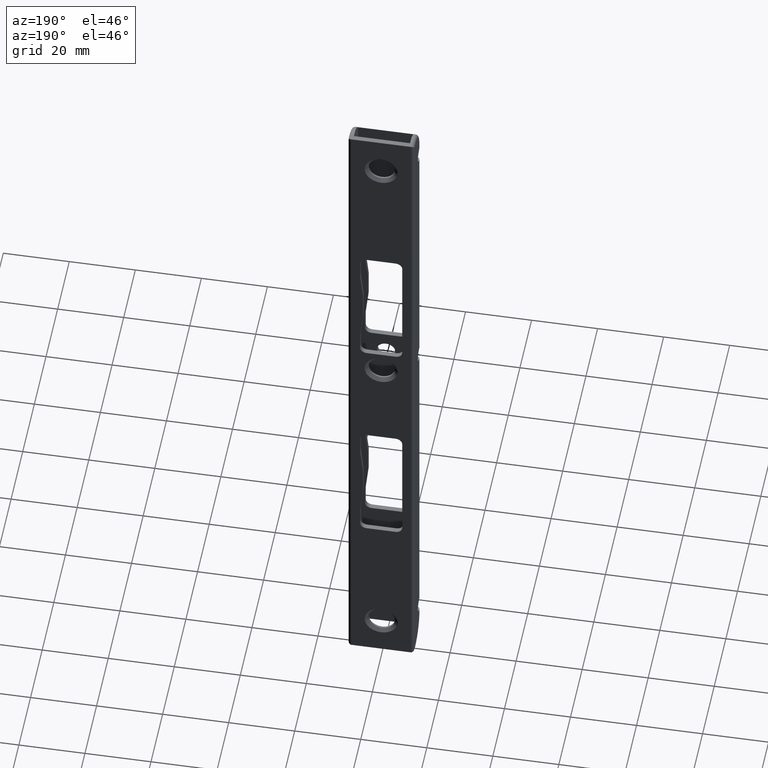
[diagram: clean part render]
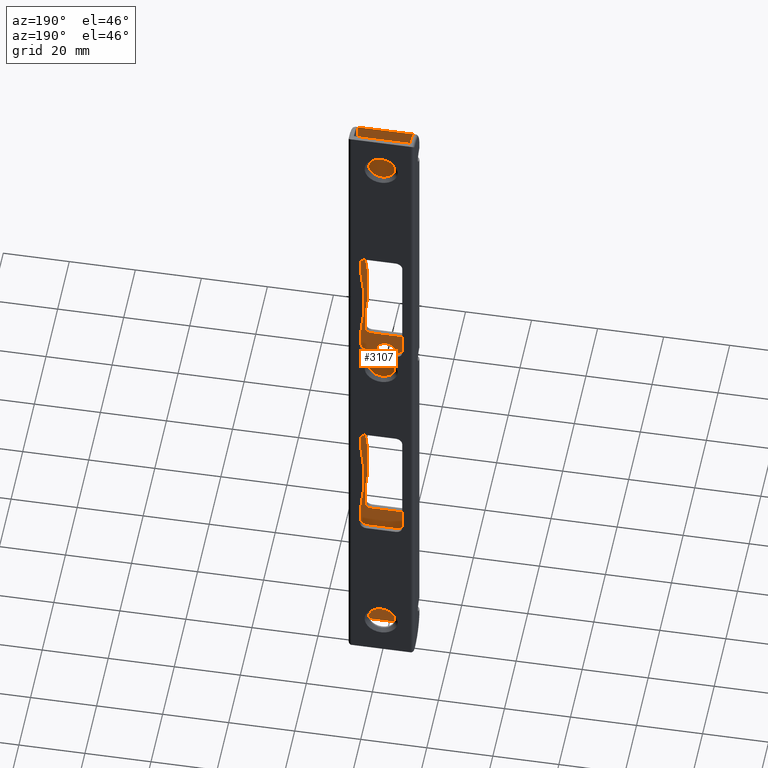
[diagram: same view with one face highlighted and labeled with its STEP entity id]
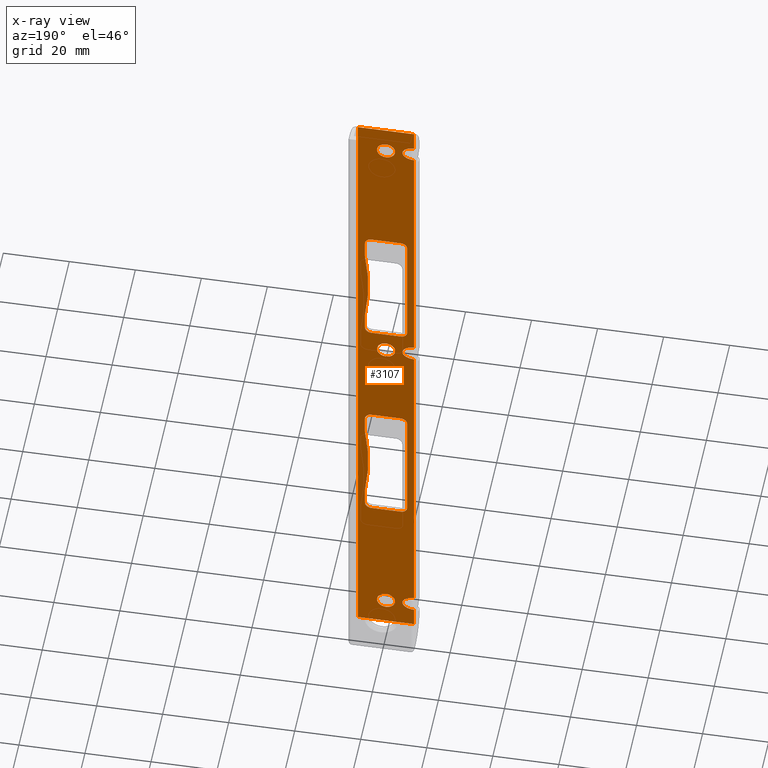
[diagram: x-ray of the same camera — body ghosted, the highlighted face saturated]
A machine part, auxiliary view. The second image highlights one B-rep face of the part: STEP entity #3107.
The next image is the same camera in x-ray: the body ghosted, the highlighted face saturated — about 0% of this face is hidden behind the body in this view.
In plain terms, the highlighted planar face has unit normal (-0, 1, 0).
Its self-contained STEP definition (entity closure, byte-faithful):
#17 = VECTOR ( 'NONE', #677, 1000.000000000000000 ) ;
#20 = CIRCLE ( 'NONE', #425, 2.000000000000001776 ) ;
#22 = DIRECTION ( 'NONE',  ( -1.328655806570404533E-30, 1.000000000000000000, 0.000000000000000000 ) ) ;
#31 = VERTEX_POINT ( 'NONE', #2887 ) ;
#36 =( BOUNDED_CURVE ( )  B_SPLINE_CURVE ( 3, ( #1182, #695, #2162, #610 ),
 .UNSPECIFIED., .F., .T. ) 
 B_SPLINE_CURVE_WITH_KNOTS ( ( 4, 4 ),
 ( 1.570796326794892117, 3.141592653589793116 ),
 .UNSPECIFIED. ) 
 CURVE ( )  GEOMETRIC_REPRESENTATION_ITEM ( )  RATIONAL_B_SPLINE_CURVE ( ( 1.000000000000000000, 0.8047378541243640493, 0.8047378541243640493, 1.000000000000000000 ) ) 
 REPRESENTATION_ITEM ( '' )  );
#37 = ORIENTED_EDGE ( 'NONE', *, *, #2054, .F. ) ;
#56 = DIRECTION ( 'NONE',  ( -1.328655806570404533E-30, 1.000000000000000000, 0.000000000000000000 ) ) ;
#91 = VERTEX_POINT ( 'NONE', #2718 ) ;
#94 = ORIENTED_EDGE ( 'NONE', *, *, #1944, .T. ) ;
#119 = VECTOR ( 'NONE', #201, 1000.000000000000000 ) ;
#125 = ORIENTED_EDGE ( 'NONE', *, *, #2220, .F. ) ;
#146 = DIRECTION ( 'NONE',  ( 0.000000000000000000, 0.000000000000000000, 1.000000000000000000 ) ) ;
#151 =( BOUNDED_CURVE ( )  B_SPLINE_CURVE ( 3, ( #732, #967, #945, #1952 ),
 .UNSPECIFIED., .F., .T. ) 
 B_SPLINE_CURVE_WITH_KNOTS ( ( 4, 4 ),
 ( 1.570796326794892117, 3.141592653589793116 ),
 .UNSPECIFIED. ) 
 CURVE ( )  GEOMETRIC_REPRESENTATION_ITEM ( )  RATIONAL_B_SPLINE_CURVE ( ( 1.000000000000000000, 0.8047378541243640493, 0.8047378541243640493, 1.000000000000000000 ) ) 
 REPRESENTATION_ITEM ( '' )  );
#156 = ORIENTED_EDGE ( 'NONE', *, *, #2753, .F. ) ;
#171 = LINE ( 'NONE', #2719, #119 ) ;
#187 = VERTEX_POINT ( 'NONE', #1523 ) ;
#201 = DIRECTION ( 'NONE',  ( 1.000000000000000000, -1.328655806570404533E-30, 0.000000000000000000 ) ) ;
#211 = FACE_OUTER_BOUND ( 'NONE', #2720, .T. ) ;
#220 = ORIENTED_EDGE ( 'NONE', *, *, #2531, .F. ) ;
#222 = CARTESIAN_POINT ( 'NONE',  ( -4.964466094067229385, -3.499999999999998668, 12.46446609406727646 ) ) ;
#226 = CIRCLE ( 'NONE', #1277, 2.000000000000001776 ) ;
#229 = CARTESIAN_POINT ( 'NONE',  ( -8.500000000000000000, -3.499999999999999556, -17.59999999999999076 ) ) ;
#234 = AXIS2_PLACEMENT_3D ( 'NONE', #491, #1493, #434 ) ;
#236 = ORIENTED_EDGE ( 'NONE', *, *, #1478, .F. ) ;
#247 = CARTESIAN_POINT ( 'NONE',  ( 1.387778780781445676E-14, -3.499999999999999556, 13.75000000000000888 ) ) ;
#251 = DIRECTION ( 'NONE',  ( 0.000000000000000000, 0.000000000000000000, 1.000000000000000000 ) ) ;
#260 = DIRECTION ( 'NONE',  ( 0.000000000000000000, 0.000000000000000000, 1.000000000000000000 ) ) ;
#264 = DIRECTION ( 'NONE',  ( 0.000000000000000000, 0.000000000000000000, 1.000000000000000000 ) ) ;
#268 = CIRCLE ( 'NONE', #588, 80.00000000000000000 ) ;
#269 = CARTESIAN_POINT ( 'NONE',  ( -8.500000000000000000, -3.499999999999999556, 108.5000000000000000 ) ) ;
#292 = LINE ( 'NONE', #1805, #2611 ) ;
#297 = LINE ( 'NONE', #1289, #1782 ) ;
#298 = DIRECTION ( 'NONE',  ( 0.000000000000000000, 0.000000000000000000, -1.000000000000000000 ) ) ;
#299 = DIRECTION ( 'NONE',  ( -1.328655806570404533E-30, 1.000000000000000000, 0.000000000000000000 ) ) ;
#305 = CARTESIAN_POINT ( 'NONE',  ( 8.500000000000000000, -3.499999999999999556, -105.1636895265444167 ) ) ;
#317 = AXIS2_PLACEMENT_3D ( 'NONE', #2768, #1254, #531 ) ;
#318 = ORIENTED_EDGE ( 'NONE', *, *, #1639, .F. ) ;
#329 = VECTOR ( 'NONE', #948, 1000.000000000000000 ) ;
#333 = DIRECTION ( 'NONE',  ( -9.654373327588600245E-16, 0.000000000000000000, 1.000000000000000000 ) ) ;
#360 = AXIS2_PLACEMENT_3D ( 'NONE', #2895, #905, #1919 ) ;
#369 = CIRCLE ( 'NONE', #2995, 2.749999999999997335 ) ;
#378 = EDGE_CURVE ( 'NONE', #2839, #1750, #738, .T. ) ;
#380 = DIRECTION ( 'NONE',  ( 0.000000000000000000, 0.000000000000000000, 1.000000000000000000 ) ) ;
#386 = CARTESIAN_POINT ( 'NONE',  ( -4.399999999999975486, -3.499999999999999556, -17.59999999999999076 ) ) ;
#405 = VERTEX_POINT ( 'NONE', #1889 ) ;
#408 = VERTEX_POINT ( 'NONE', #1169 ) ;
#414 = AXIS2_PLACEMENT_3D ( 'NONE', #611, #2591, #1355 ) ;
#425 = AXIS2_PLACEMENT_3D ( 'NONE', #1011, #22, #2198 ) ;
#432 = EDGE_LOOP ( 'NONE', ( #634, #2069, #697, #2750, #2026, #1370, #125, #2455, #638, #156 ) ) ;
#434 = DIRECTION ( 'NONE',  ( 0.000000000000000000, 0.000000000000000000, 1.000000000000000000 ) ) ;
#447 = ORIENTED_EDGE ( 'NONE', *, *, #2371, .F. ) ;
#456 = FACE_BOUND ( 'NONE', #860, .T. ) ;
#464 = VERTEX_POINT ( 'NONE', #1268 ) ;
#476 = CIRCLE ( 'NONE', #2714, 2.750000000000002665 ) ;
#477 = AXIS2_PLACEMENT_3D ( 'NONE', #2557, #1095, #1808 ) ;
#491 = CARTESIAN_POINT ( 'NONE',  ( -8.500000000000000000, -3.499999999999999556, 108.5000000000000000 ) ) ;
#494 = CIRCLE ( 'NONE', #2983, 2.749999999999997335 ) ;
#501 = DIRECTION ( 'NONE',  ( 1.686536712755230215E-16, -1.109335647967047851E-31, 1.000000000000000000 ) ) ;
#503 = CARTESIAN_POINT ( 'NONE',  ( 6.400000000000016342, -3.499999999999999556, -24.99047978708141216 ) ) ;
#511 = FACE_BOUND ( 'NONE', #432, .T. ) ;
#517 = CARTESIAN_POINT ( 'NONE',  ( 1.421456567757997526E-14, -3.499999999999999556, 8.250000000000014211 ) ) ;
#518 = ORIENTED_EDGE ( 'NONE', *, *, #2425, .F. ) ;
#530 = DIRECTION ( 'NONE',  ( 0.000000000000000000, 0.000000000000000000, -1.000000000000000000 ) ) ;
#531 = DIRECTION ( 'NONE',  ( 0.000000000000000000, 0.000000000000000000, 1.000000000000000000 ) ) ;
#532 = EDGE_CURVE ( 'NONE', #2072, #989, #1900, .T. ) ;
#555 = DIRECTION ( 'NONE',  ( 0.000000000000000000, 0.000000000000000000, -1.000000000000000000 ) ) ;
#556 = CARTESIAN_POINT ( 'NONE',  ( 8.500000000000000000, -3.499999999999999556, 108.5000000000000000 ) ) ;
#557 = CARTESIAN_POINT ( 'NONE',  ( 4.400000000000004796, -3.499999999999999556, 55.60000000000002274 ) ) ;
#578 =( BOUNDED_CURVE ( )  B_SPLINE_CURVE ( 3, ( #815, #2806, #2741, #1562 ),
 .UNSPECIFIED., .F., .T. ) 
 B_SPLINE_CURVE_WITH_KNOTS ( ( 4, 4 ),
 ( 3.141592653589793116, 4.712388980384694115 ),
 .UNSPECIFIED. ) 
 CURVE ( )  GEOMETRIC_REPRESENTATION_ITEM ( )  RATIONAL_B_SPLINE_CURVE ( ( 1.000000000000000000, 0.8047378541243640493, 0.8047378541243640493, 1.000000000000000000 ) ) 
 REPRESENTATION_ITEM ( '' )  );
#588 = AXIS2_PLACEMENT_3D ( 'NONE', #3074, #881, #264 ) ;
#605 = ORIENTED_EDGE ( 'NONE', *, *, #1368, .T. ) ;
#609 = EDGE_CURVE ( 'NONE', #2519, #968, #1365, .T. ) ;
#610 = CARTESIAN_POINT ( 'NONE',  ( -4.964466094067226720, -3.499999999999999556, -96.50000000000000000 ) ) ;
#611 = CARTESIAN_POINT ( 'NONE',  ( 4.400000000000011902, -3.499999999999999556, -19.59999999999998721 ) ) ;
#613 = CARTESIAN_POINT ( 'NONE',  ( 6.399999999999888445, -3.499999999999999556, 108.5000000000000142 ) ) ;
#620 = CARTESIAN_POINT ( 'NONE',  ( -4.400000000000003020, -3.499999999999999556, 19.60000000000002629 ) ) ;
#621 = ORIENTED_EDGE ( 'NONE', *, *, #2859, .F. ) ;
#624 = CARTESIAN_POINT ( 'NONE',  ( -4.400000000000003020, -3.499999999999999556, 17.60000000000002629 ) ) ;
#634 = ORIENTED_EDGE ( 'NONE', *, *, #378, .T. ) ;
#638 = ORIENTED_EDGE ( 'NONE', *, *, #2747, .T. ) ;
#661 = CARTESIAN_POINT ( 'NONE',  ( 1.387778780781445676E-14, -3.499999999999999556, 11.00000000000001066 ) ) ;
#670 = ORIENTED_EDGE ( 'NONE', *, *, #1275, .T. ) ;
#677 = DIRECTION ( 'NONE',  ( -4.827186663794240958E-16, -1.109335647967047851E-31, 1.000000000000000000 ) ) ;
#680 = VERTEX_POINT ( 'NONE', #1026 ) ;
#686 = ORIENTED_EDGE ( 'NONE', *, *, #750, .F. ) ;
#695 = CARTESIAN_POINT ( 'NONE',  ( -6.428932188134505843, -3.499999999999998668, -93.99999999999998579 ) ) ;
#697 = ORIENTED_EDGE ( 'NONE', *, *, #2034, .T. ) ;
#712 = LINE ( 'NONE', #1486, #1993 ) ;
#732 = CARTESIAN_POINT ( 'NONE',  ( -8.500000000000000000, -3.499999999999999556, 99.00000000000000000 ) ) ;
#737 = CIRCLE ( 'NONE', #414, 1.999999999999998224 ) ;
#738 = LINE ( 'NONE', #1135, #17 ) ;
#741 = VECTOR ( 'NONE', #530, 1000.000000000000000 ) ;
#750 = EDGE_CURVE ( 'NONE', #968, #2519, #2188, .T. ) ;
#769 = CARTESIAN_POINT ( 'NONE',  ( -6.399999999999967493, -3.499999999999999556, 108.5000000000000000 ) ) ;
#770 = CARTESIAN_POINT ( 'NONE',  ( -8.500000000000000000, -3.499999999999999556, -105.1636895265444309 ) ) ;
#771 = CARTESIAN_POINT ( 'NONE',  ( 6.933347799794049071E-30, -3.499999999999999556, -96.50000000000000000 ) ) ;
#775 = CARTESIAN_POINT ( 'NONE',  ( 3.367778697655267357E-16, -3.499999999999999556, 93.75000000000000000 ) ) ;
#786 = CARTESIAN_POINT ( 'NONE',  ( -4.964466094067226720, -3.499999999999999556, 96.50000000000000000 ) ) ;
#798 = CARTESIAN_POINT ( 'NONE',  ( 6.400000000000005684, -3.499999999999999556, -55.59999999999997300 ) ) ;
#815 = CARTESIAN_POINT ( 'NONE',  ( -4.964466094067226720, -3.499999999999999556, -96.50000000000000000 ) ) ;
#857 = DIRECTION ( 'NONE',  ( 1.000000000000000000, -1.328655806570404533E-30, 0.000000000000000000 ) ) ;
#860 = EDGE_LOOP ( 'NONE', ( #686, #2259 ) ) ;
#868 = LINE ( 'NONE', #1823, #2826 ) ;
#871 = EDGE_CURVE ( 'NONE', #2811, #1349, #476, .T. ) ;
#881 = DIRECTION ( 'NONE',  ( -1.328655806570404533E-30, 1.000000000000000000, 0.000000000000000000 ) ) ;
#883 = EDGE_CURVE ( 'NONE', #408, #1089, #2793, .T. ) ;
#905 = DIRECTION ( 'NONE',  ( -1.328655806570404533E-30, 1.000000000000000000, 0.000000000000000000 ) ) ;
#912 = VERTEX_POINT ( 'NONE', #247 ) ;
#944 = EDGE_CURVE ( 'NONE', #1451, #3143, #949, .T. ) ;
#945 = CARTESIAN_POINT ( 'NONE',  ( -4.964466094067224944, -3.499999999999998668, 97.96446609406724804 ) ) ;
#948 = DIRECTION ( 'NONE',  ( 1.000000000000000000, -1.328655806570404533E-30, 0.000000000000000000 ) ) ;
#949 = LINE ( 'NONE', #2707, #2722 ) ;
#951 =( BOUNDED_CURVE ( )  B_SPLINE_CURVE ( 3, ( #2777, #1790, #222, #3240 ),
 .UNSPECIFIED., .F., .T. ) 
 B_SPLINE_CURVE_WITH_KNOTS ( ( 4, 4 ),
 ( 1.570796326794892117, 3.141592653589793116 ),
 .UNSPECIFIED. ) 
 CURVE ( )  GEOMETRIC_REPRESENTATION_ITEM ( )  RATIONAL_B_SPLINE_CURVE ( ( 1.000000000000000000, 0.8047378541243640493, 0.8047378541243640493, 1.000000000000000000 ) ) 
 REPRESENTATION_ITEM ( '' )  );
#967 = CARTESIAN_POINT ( 'NONE',  ( -6.428932188134505843, -3.499999999999998668, 98.99999999999998579 ) ) ;
#968 = VERTEX_POINT ( 'NONE', #2958 ) ;
#989 = VERTEX_POINT ( 'NONE', #1195 ) ;
#998 = DIRECTION ( 'NONE',  ( -1.328655806570404533E-30, 1.000000000000000000, 0.000000000000000000 ) ) ;
#1003 = CARTESIAN_POINT ( 'NONE',  ( 6.400000000000016342, -3.499999999999999556, 50.20952021291860490 ) ) ;
#1011 = CARTESIAN_POINT ( 'NONE',  ( -4.399999999999988809, -3.499999999999999556, -19.59999999999999076 ) ) ;
#1019 = DIRECTION ( 'NONE',  ( 0.000000000000000000, 0.000000000000000000, 1.000000000000000000 ) ) ;
#1026 = CARTESIAN_POINT ( 'NONE',  ( -6.400000000000003908, -3.499999999999999556, 19.60000000000004050 ) ) ;
#1089 = VERTEX_POINT ( 'NONE', #305 ) ;
#1095 = DIRECTION ( 'NONE',  ( -1.328655806570404533E-30, 1.000000000000000000, 0.000000000000000000 ) ) ;
#1100 = LINE ( 'NONE', #2085, #2782 ) ;
#1116 = CARTESIAN_POINT ( 'NONE',  ( -6.428932188134508507, -3.499999999999998668, 8.500000000000001776 ) ) ;
#1132 = EDGE_CURVE ( 'NONE', #2601, #2304, #292, .T. ) ;
#1135 = CARTESIAN_POINT ( 'NONE',  ( 6.399999999999926636, -3.499999999999999556, 108.5000000000000142 ) ) ;
#1137 = EDGE_LOOP ( 'NONE', ( #2183, #1402 ) ) ;
#1169 = CARTESIAN_POINT ( 'NONE',  ( 8.500000000000000000, -3.499999999999999556, 105.1636895265444167 ) ) ;
#1182 = CARTESIAN_POINT ( 'NONE',  ( -8.500000000000000000, -3.499999999999999556, -94.00000000000001421 ) ) ;
#1195 = CARTESIAN_POINT ( 'NONE',  ( 4.399999999999997691, -3.499999999999999556, -17.59999999999999076 ) ) ;
#1197 = FACE_BOUND ( 'NONE', #1580, .T. ) ;
#1229 = DIRECTION ( 'NONE',  ( 1.000000000000000000, -1.328655806570404533E-30, -0.000000000000000000 ) ) ;
#1230 = ORIENTED_EDGE ( 'NONE', *, *, #2774, .F. ) ;
#1236 = CARTESIAN_POINT ( 'NONE',  ( -4.399999999999995914, -3.499999999999999556, 55.60000000000002274 ) ) ;
#1248 = CARTESIAN_POINT ( 'NONE',  ( 6.399999999999995914, -3.499999999999999556, 24.99047978708151518 ) ) ;
#1254 = DIRECTION ( 'NONE',  ( -1.328655806570404533E-30, 1.000000000000000000, 0.000000000000000000 ) ) ;
#1258 = CARTESIAN_POINT ( 'NONE',  ( -4.964466094067230273, -3.499999999999999556, 11.00000000000001066 ) ) ;
#1262 = CARTESIAN_POINT ( 'NONE',  ( -4.399999999999981704, -3.499999999999999556, 57.60000000000002274 ) ) ;
#1267 = VECTOR ( 'NONE', #333, 1000.000000000000000 ) ;
#1268 = CARTESIAN_POINT ( 'NONE',  ( -4.964466094067226720, -3.499999999999999556, 96.50000000000000000 ) ) ;
#1271 = VECTOR ( 'NONE', #501, 1000.000000000000000 ) ;
#1275 = EDGE_CURVE ( 'NONE', #680, #1650, #2993, .T. ) ;
#1277 = AXIS2_PLACEMENT_3D ( 'NONE', #1236, #2218, #3229 ) ;
#1289 = CARTESIAN_POINT ( 'NONE',  ( -6.399999999999985256, -3.499999999999999556, 108.5000000000000000 ) ) ;
#1290 = DIRECTION ( 'NONE',  ( -1.328655806570404533E-30, 1.000000000000000000, 0.000000000000000000 ) ) ;
#1300 = DIRECTION ( 'NONE',  ( 1.927470528863120528E-16, 0.000000000000000000, 1.000000000000000000 ) ) ;
#1314 = VECTOR ( 'NONE', #2533, 1000.000000000000000 ) ;
#1330 = CARTESIAN_POINT ( 'NONE',  ( 6.400000000000011902, -3.499999999999999556, -19.60000000000000497 ) ) ;
#1334 = CARTESIAN_POINT ( 'NONE',  ( -4.964466094067226720, -3.499999999999999556, -96.50000000000000000 ) ) ;
#1349 = VERTEX_POINT ( 'NONE', #2684 ) ;
#1353 = ORIENTED_EDGE ( 'NONE', *, *, #2866, .F. ) ;
#1355 = DIRECTION ( 'NONE',  ( 0.000000000000000000, 0.000000000000000000, 1.000000000000000000 ) ) ;
#1359 = AXIS2_PLACEMENT_3D ( 'NONE', #1976, #1756, #2253 ) ;
#1365 = CIRCLE ( 'NONE', #1533, 2.750000000000002665 ) ;
#1368 = EDGE_CURVE ( 'NONE', #1650, #2505, #171, .T. ) ;
#1370 = ORIENTED_EDGE ( 'NONE', *, *, #1469, .F. ) ;
#1373 = VECTOR ( 'NONE', #555, 1000.000000000000000 ) ;
#1377 = CARTESIAN_POINT ( 'NONE',  ( -8.500000000000000000, -3.499999999999999556, 99.00000000000000000 ) ) ;
#1380 = CARTESIAN_POINT ( 'NONE',  ( -4.964466094067229385, -3.499999999999998668, 9.535533905932743082 ) ) ;
#1401 = DIRECTION ( 'NONE',  ( 1.328655806570404533E-30, -1.000000000000000000, -0.000000000000000000 ) ) ;
#1402 = ORIENTED_EDGE ( 'NONE', *, *, #871, .F. ) ;
#1451 = VERTEX_POINT ( 'NONE', #1767 ) ;
#1458 = LINE ( 'NONE', #769, #1271 ) ;
#1469 = EDGE_CURVE ( 'NONE', #2155, #2072, #20, .T. ) ;
#1478 = EDGE_CURVE ( 'NONE', #2363, #2600, #226, .T. ) ;
#1486 = CARTESIAN_POINT ( 'NONE',  ( -8.500000000000000000, -3.499999999999999556, -57.60000000000000142 ) ) ;
#1493 = DIRECTION ( 'NONE',  ( -1.328655806570404533E-30, 1.000000000000000000, 0.000000000000000000 ) ) ;
#1523 = CARTESIAN_POINT ( 'NONE',  ( -8.500000000000000000, -3.499999999999999556, 8.500000000000007105 ) ) ;
#1533 = AXIS2_PLACEMENT_3D ( 'NONE', #1728, #1751, #260 ) ;
#1545 = VERTEX_POINT ( 'NONE', #1330 ) ;
#1562 = CARTESIAN_POINT ( 'NONE',  ( -8.500000000000000000, -3.499999999999999556, -99.00000000000001421 ) ) ;
#1565 = ORIENTED_EDGE ( 'NONE', *, *, #3117, .T. ) ;
#1566 = ORIENTED_EDGE ( 'NONE', *, *, #1132, .T. ) ;
#1574 = AXIS2_PLACEMENT_3D ( 'NONE', #620, #1401, #380 ) ;
#1576 = CIRCLE ( 'NONE', #3092, 2.000000000000001776 ) ;
#1580 = EDGE_LOOP ( 'NONE', ( #3057, #670, #605, #3124, #3082, #2820, #1566, #2921, #3177, #236 ) ) ;
#1604 = CARTESIAN_POINT ( 'NONE',  ( -8.500000000000000000, -3.499999999999999556, 94.00000000000000000 ) ) ;
#1612 = CARTESIAN_POINT ( 'NONE',  ( 6.400000000000004796, -3.499999999999999556, 55.60000000000000853 ) ) ;
#1639 = EDGE_CURVE ( 'NONE', #912, #2399, #494, .T. ) ;
#1650 = VERTEX_POINT ( 'NONE', #624 ) ;
#1679 = EDGE_CURVE ( 'NONE', #2795, #187, #2273, .T. ) ;
#1690 = PLANE ( 'NONE',  #234 ) ;
#1696 = FACE_BOUND ( 'NONE', #2403, .T. ) ;
#1699 = LINE ( 'NONE', #1737, #2125 ) ;
#1713 = EDGE_CURVE ( 'NONE', #989, #1545, #737, .T. ) ;
#1724 = LINE ( 'NONE', #2725, #2574 ) ;
#1728 = CARTESIAN_POINT ( 'NONE',  ( 7.703719777548943412E-31, -3.499999999999999556, 96.50000000000000000 ) ) ;
#1737 = CARTESIAN_POINT ( 'NONE',  ( 8.500000000000000000, -3.499999999999999556, -105.1636895265444309 ) ) ;
#1739 = CARTESIAN_POINT ( 'NONE',  ( 4.400000000000006573, -3.499999999999999556, -55.59999999999998721 ) ) ;
#1750 = VERTEX_POINT ( 'NONE', #2315 ) ;
#1751 = DIRECTION ( 'NONE',  ( -1.328655806570404533E-30, 1.000000000000000000, 0.000000000000000000 ) ) ;
#1756 = DIRECTION ( 'NONE',  ( 1.328655806570404533E-30, -1.000000000000000000, -0.000000000000000000 ) ) ;
#1767 = CARTESIAN_POINT ( 'NONE',  ( 6.399999999999999467, -3.499999999999999556, 19.60000000000004050 ) ) ;
#1771 = CARTESIAN_POINT ( 'NONE',  ( -4.964466094067224944, -3.499999999999998668, 95.03553390593273775 ) ) ;
#1782 = VECTOR ( 'NONE', #1300, 1000.000000000000000 ) ;
#1786 = DIRECTION ( 'NONE',  ( 0.000000000000000000, 0.000000000000000000, 1.000000000000000000 ) ) ;
#1790 = CARTESIAN_POINT ( 'NONE',  ( -6.428932188134508507, -3.499999999999998668, 13.50000000000001599 ) ) ;
#1794 = CIRCLE ( 'NONE', #2631, 2.000000000000001776 ) ;
#1805 = CARTESIAN_POINT ( 'NONE',  ( 6.399999999999954170, -3.499999999999999556, 108.5000000000000142 ) ) ;
#1808 = DIRECTION ( 'NONE',  ( 0.000000000000000000, 0.000000000000000000, 1.000000000000000000 ) ) ;
#1811 = EDGE_CURVE ( 'NONE', #1451, #2505, #1872, .T. ) ;
#1817 = ORIENTED_EDGE ( 'NONE', *, *, #3227, .F. ) ;
#1823 = CARTESIAN_POINT ( 'NONE',  ( -8.500000000000000000, -3.499999999999999556, 108.5000000000000000 ) ) ;
#1872 = CIRCLE ( 'NONE', #360, 2.000000000000001776 ) ;
#1889 = CARTESIAN_POINT ( 'NONE',  ( 4.399999999999990585, -3.499999999999999556, -57.59999999999999432 ) ) ;
#1897 = VERTEX_POINT ( 'NONE', #2617 ) ;
#1900 = LINE ( 'NONE', #229, #329 ) ;
#1919 = DIRECTION ( 'NONE',  ( 0.000000000000000000, 0.000000000000000000, 1.000000000000000000 ) ) ;
#1922 = VERTEX_POINT ( 'NONE', #3233 ) ;
#1936 = EDGE_CURVE ( 'NONE', #2744, #91, #3130, .T. ) ;
#1944 = EDGE_CURVE ( 'NONE', #1089, #2824, #1699, .T. ) ;
#1952 = CARTESIAN_POINT ( 'NONE',  ( -4.964466094067226720, -3.499999999999999556, 96.50000000000000000 ) ) ;
#1964 = ORIENTED_EDGE ( 'NONE', *, *, #1679, .F. ) ;
#1976 = CARTESIAN_POINT ( 'NONE',  ( -4.399999999999995026, -3.499999999999999556, -55.59999999999998721 ) ) ;
#1979 = DIRECTION ( 'NONE',  ( 0.000000000000000000, 0.000000000000000000, 1.000000000000000000 ) ) ;
#1993 = VECTOR ( 'NONE', #2223, 1000.000000000000000 ) ;
#2024 = CARTESIAN_POINT ( 'NONE',  ( 4.399999999999983480, -3.499999999999999556, 17.60000000000002629 ) ) ;
#2026 = ORIENTED_EDGE ( 'NONE', *, *, #532, .F. ) ;
#2034 = EDGE_CURVE ( 'NONE', #2762, #1545, #2815, .T. ) ;
#2051 = DIRECTION ( 'NONE',  ( -9.654373327588606161E-16, 0.000000000000000000, 1.000000000000000000 ) ) ;
#2054 = EDGE_CURVE ( 'NONE', #2139, #1897, #2792, .T. ) ;
#2069 = ORIENTED_EDGE ( 'NONE', *, *, #2347, .T. ) ;
#2072 = VERTEX_POINT ( 'NONE', #386 ) ;
#2085 = CARTESIAN_POINT ( 'NONE',  ( -8.500000000000000000, -3.499999999999999556, 57.60000000000002274 ) ) ;
#2108 = CARTESIAN_POINT ( 'NONE',  ( 4.399999999999990585, -3.499999999999999556, 57.60000000000002274 ) ) ;
#2110 = CARTESIAN_POINT ( 'NONE',  ( -6.399999999999988809, -3.499999999999999556, -19.60000000000000497 ) ) ;
#2125 = VECTOR ( 'NONE', #2736, 1000.000000000000000 ) ;
#2127 = AXIS2_PLACEMENT_3D ( 'NONE', #2735, #2945, #251 ) ;
#2135 = EDGE_CURVE ( 'NONE', #2600, #2378, #1100, .T. ) ;
#2138 = ORIENTED_EDGE ( 'NONE', *, *, #2289, .F. ) ;
#2139 = VERTEX_POINT ( 'NONE', #1604 ) ;
#2155 = VERTEX_POINT ( 'NONE', #2110 ) ;
#2160 = DIRECTION ( 'NONE',  ( -3.218124442529494136E-16, 0.000000000000000000, 1.000000000000000000 ) ) ;
#2162 = CARTESIAN_POINT ( 'NONE',  ( -4.964466094067224944, -3.499999999999998668, -95.03553390593273775 ) ) ;
#2183 = ORIENTED_EDGE ( 'NONE', *, *, #2215, .F. ) ;
#2188 = CIRCLE ( 'NONE', #317, 2.750000000000002665 ) ;
#2198 = DIRECTION ( 'NONE',  ( 0.000000000000000000, 0.000000000000000000, 1.000000000000000000 ) ) ;
#2215 = EDGE_CURVE ( 'NONE', #1349, #2811, #2444, .T. ) ;
#2218 = DIRECTION ( 'NONE',  ( -1.328655806570404533E-30, 1.000000000000000000, 0.000000000000000000 ) ) ;
#2220 = EDGE_CURVE ( 'NONE', #2744, #2155, #1458, .T. ) ;
#2223 = DIRECTION ( 'NONE',  ( 1.000000000000000000, -1.328655806570404533E-30, 0.000000000000000000 ) ) ;
#2241 = ORIENTED_EDGE ( 'NONE', *, *, #2621, .F. ) ;
#2249 = CIRCLE ( 'NONE', #477, 79.99999999999998579 ) ;
#2253 = DIRECTION ( 'NONE',  ( 0.000000000000000000, 0.000000000000000000, 1.000000000000000000 ) ) ;
#2259 = ORIENTED_EDGE ( 'NONE', *, *, #609, .F. ) ;
#2270 = CARTESIAN_POINT ( 'NONE',  ( -8.500000000000000000, -3.499999999999999556, 94.00000000000000000 ) ) ;
#2273 =( BOUNDED_CURVE ( )  B_SPLINE_CURVE ( 3, ( #2408, #1380, #1116, #2358 ),
 .UNSPECIFIED., .F., .T. ) 
 B_SPLINE_CURVE_WITH_KNOTS ( ( 4, 4 ),
 ( 3.141592653589793116, 4.712388980384694115 ),
 .UNSPECIFIED. ) 
 CURVE ( )  GEOMETRIC_REPRESENTATION_ITEM ( )  RATIONAL_B_SPLINE_CURVE ( ( 1.000000000000000000, 0.8047378541243640493, 0.8047378541243640493, 1.000000000000000000 ) ) 
 REPRESENTATION_ITEM ( '' )  );
#2280 = CARTESIAN_POINT ( 'NONE',  ( 1.387778780781445676E-14, -3.499999999999999556, 11.00000000000001066 ) ) ;
#2289 = EDGE_CURVE ( 'NONE', #31, #2905, #36, .T. ) ;
#2304 = VERTEX_POINT ( 'NONE', #1612 ) ;
#2309 = DIRECTION ( 'NONE',  ( 0.000000000000000000, 0.000000000000000000, -1.000000000000000000 ) ) ;
#2315 = CARTESIAN_POINT ( 'NONE',  ( 6.400000000000003020, -3.499999999999999556, -50.20952021291849832 ) ) ;
#2332 = VERTEX_POINT ( 'NONE', #1377 ) ;
#2347 = EDGE_CURVE ( 'NONE', #1750, #2762, #268, .T. ) ;
#2358 = CARTESIAN_POINT ( 'NONE',  ( -8.500000000000000000, -3.499999999999999556, 8.500000000000007105 ) ) ;
#2363 = VERTEX_POINT ( 'NONE', #2576 ) ;
#2369 = EDGE_CURVE ( 'NONE', #3143, #2601, #2249, .T. ) ;
#2371 = EDGE_CURVE ( 'NONE', #187, #31, #868, .T. ) ;
#2378 = VERTEX_POINT ( 'NONE', #2108 ) ;
#2399 = VERTEX_POINT ( 'NONE', #517 ) ;
#2403 = EDGE_LOOP ( 'NONE', ( #318, #621 ) ) ;
#2408 = CARTESIAN_POINT ( 'NONE',  ( -4.964466094067230273, -3.499999999999999556, 11.00000000000001066 ) ) ;
#2425 = EDGE_CURVE ( 'NONE', #1922, #2824, #2711, .T. ) ;
#2440 = DIRECTION ( 'NONE',  ( 0.000000000000000000, 0.000000000000000000, 1.000000000000000000 ) ) ;
#2444 = CIRCLE ( 'NONE', #2127, 2.750000000000002665 ) ;
#2455 = ORIENTED_EDGE ( 'NONE', *, *, #1936, .T. ) ;
#2467 = CARTESIAN_POINT ( 'NONE',  ( -6.399999999999995026, -3.499999999999999556, -55.59999999999997300 ) ) ;
#2500 = LINE ( 'NONE', #269, #1373 ) ;
#2505 = VERTEX_POINT ( 'NONE', #2024 ) ;
#2519 = VERTEX_POINT ( 'NONE', #775 ) ;
#2520 = CARTESIAN_POINT ( 'NONE',  ( -6.428932188134505843, -3.499999999999998668, 93.99999999999998579 ) ) ;
#2531 = EDGE_CURVE ( 'NONE', #1897, #2795, #951, .T. ) ;
#2533 = DIRECTION ( 'NONE',  ( 0.000000000000000000, 0.000000000000000000, -1.000000000000000000 ) ) ;
#2557 = CARTESIAN_POINT ( 'NONE',  ( 85.39999999999999147, -3.499999999999999556, 37.60000000000000853 ) ) ;
#2565 = CARTESIAN_POINT ( 'NONE',  ( -8.500000000000000000, -3.499999999999999556, 108.5000000000000000 ) ) ;
#2574 = VECTOR ( 'NONE', #1229, 1000.000000000000000 ) ;
#2576 = CARTESIAN_POINT ( 'NONE',  ( -6.399999999999996803, -3.499999999999999556, 55.60000000000000853 ) ) ;
#2587 = ORIENTED_EDGE ( 'NONE', *, *, #883, .T. ) ;
#2591 = DIRECTION ( 'NONE',  ( -1.328655806570404533E-30, 1.000000000000000000, 0.000000000000000000 ) ) ;
#2600 = VERTEX_POINT ( 'NONE', #1262 ) ;
#2601 = VERTEX_POINT ( 'NONE', #1003 ) ;
#2607 = DIRECTION ( 'NONE',  ( -1.328655806570404533E-30, 1.000000000000000000, 0.000000000000000000 ) ) ;
#2611 = VECTOR ( 'NONE', #2051, 1000.000000000000000 ) ;
#2617 = CARTESIAN_POINT ( 'NONE',  ( -8.500000000000000000, -3.499999999999999556, 13.50000000000001243 ) ) ;
#2621 = EDGE_CURVE ( 'NONE', #464, #2139, #3136, .T. ) ;
#2631 = AXIS2_PLACEMENT_3D ( 'NONE', #557, #299, #2440 ) ;
#2651 = VERTEX_POINT ( 'NONE', #2897 ) ;
#2684 = CARTESIAN_POINT ( 'NONE',  ( 6.933347799794049071E-30, -3.499999999999999556, -93.75000000000000000 ) ) ;
#2707 = CARTESIAN_POINT ( 'NONE',  ( 6.399999999999970157, -3.499999999999999556, 108.5000000000000000 ) ) ;
#2711 = LINE ( 'NONE', #2767, #741 ) ;
#2714 = AXIS2_PLACEMENT_3D ( 'NONE', #771, #1290, #1786 ) ;
#2718 = CARTESIAN_POINT ( 'NONE',  ( -4.399999999999979927, -3.499999999999999556, -57.59999999999999432 ) ) ;
#2719 = CARTESIAN_POINT ( 'NONE',  ( -8.500000000000000000, -3.499999999999999556, 17.60000000000001918 ) ) ;
#2720 = EDGE_LOOP ( 'NONE', ( #2138, #447, #1964, #220, #37, #2241, #1817, #1230, #1565, #2587, #94, #518, #1353 ) ) ;
#2722 = VECTOR ( 'NONE', #2160, 1000.000000000000000 ) ;
#2725 = CARTESIAN_POINT ( 'NONE',  ( -8.500000000000000000, -3.499999999999999556, 105.1636895265444167 ) ) ;
#2735 = CARTESIAN_POINT ( 'NONE',  ( 6.933347799794049071E-30, -3.499999999999999556, -96.50000000000000000 ) ) ;
#2736 = DIRECTION ( 'NONE',  ( -1.000000000000000000, 1.328655806570404533E-30, -0.000000000000000000 ) ) ;
#2741 = CARTESIAN_POINT ( 'NONE',  ( -6.428932188134505843, -3.499999999999998668, -98.99999999999998579 ) ) ;
#2744 = VERTEX_POINT ( 'NONE', #2467 ) ;
#2747 = EDGE_CURVE ( 'NONE', #91, #405, #712, .T. ) ;
#2750 = ORIENTED_EDGE ( 'NONE', *, *, #1713, .F. ) ;
#2753 = EDGE_CURVE ( 'NONE', #2839, #405, #1576, .T. ) ;
#2762 = VERTEX_POINT ( 'NONE', #503 ) ;
#2767 = CARTESIAN_POINT ( 'NONE',  ( -8.500000000000000000, -3.499999999999999556, 108.5000000000000000 ) ) ;
#2768 = CARTESIAN_POINT ( 'NONE',  ( 7.703719777548943412E-31, -3.499999999999999556, 96.50000000000000000 ) ) ;
#2774 = EDGE_CURVE ( 'NONE', #2651, #2332, #2500, .T. ) ;
#2777 = CARTESIAN_POINT ( 'NONE',  ( -8.500000000000000000, -3.499999999999999556, 13.50000000000001243 ) ) ;
#2782 = VECTOR ( 'NONE', #857, 1000.000000000000000 ) ;
#2792 = LINE ( 'NONE', #2565, #2987 ) ;
#2793 = LINE ( 'NONE', #556, #1314 ) ;
#2795 = VERTEX_POINT ( 'NONE', #1258 ) ;
#2806 = CARTESIAN_POINT ( 'NONE',  ( -4.964466094067224944, -3.499999999999998668, -97.96446609406724804 ) ) ;
#2811 = VERTEX_POINT ( 'NONE', #3007 ) ;
#2815 = LINE ( 'NONE', #613, #1267 ) ;
#2820 = ORIENTED_EDGE ( 'NONE', *, *, #2369, .T. ) ;
#2824 = VERTEX_POINT ( 'NONE', #770 ) ;
#2826 = VECTOR ( 'NONE', #2309, 1000.000000000000000 ) ;
#2839 = VERTEX_POINT ( 'NONE', #798 ) ;
#2858 = EDGE_CURVE ( 'NONE', #680, #2363, #297, .T. ) ;
#2859 = EDGE_CURVE ( 'NONE', #2399, #912, #369, .T. ) ;
#2866 = EDGE_CURVE ( 'NONE', #2905, #1922, #578, .T. ) ;
#2887 = CARTESIAN_POINT ( 'NONE',  ( -8.500000000000000000, -3.499999999999999556, -94.00000000000001421 ) ) ;
#2895 = CARTESIAN_POINT ( 'NONE',  ( 4.399999999999999467, -3.499999999999999556, 19.60000000000002629 ) ) ;
#2897 = CARTESIAN_POINT ( 'NONE',  ( -8.500000000000000000, -3.499999999999999556, 105.1636895265444167 ) ) ;
#2905 = VERTEX_POINT ( 'NONE', #1334 ) ;
#2921 = ORIENTED_EDGE ( 'NONE', *, *, #3106, .F. ) ;
#2945 = DIRECTION ( 'NONE',  ( -1.328655806570404533E-30, 1.000000000000000000, 0.000000000000000000 ) ) ;
#2958 = CARTESIAN_POINT ( 'NONE',  ( 7.703719777548943412E-31, -3.499999999999999556, 99.25000000000000000 ) ) ;
#2983 = AXIS2_PLACEMENT_3D ( 'NONE', #661, #2607, #146 ) ;
#2987 = VECTOR ( 'NONE', #298, 1000.000000000000000 ) ;
#2993 = CIRCLE ( 'NONE', #1574, 2.000000000000001776 ) ;
#2995 = AXIS2_PLACEMENT_3D ( 'NONE', #2280, #56, #1019 ) ;
#3007 = CARTESIAN_POINT ( 'NONE',  ( 3.367778697655328987E-16, -3.499999999999999556, -99.25000000000000000 ) ) ;
#3057 = ORIENTED_EDGE ( 'NONE', *, *, #2858, .F. ) ;
#3074 = CARTESIAN_POINT ( 'NONE',  ( 85.40000000000000568, -3.499999999999999556, -37.60000000000000853 ) ) ;
#3082 = ORIENTED_EDGE ( 'NONE', *, *, #944, .T. ) ;
#3092 = AXIS2_PLACEMENT_3D ( 'NONE', #1739, #998, #1979 ) ;
#3106 = EDGE_CURVE ( 'NONE', #2378, #2304, #1794, .T. ) ;
#3107 = ADVANCED_FACE ( 'NONE', ( #1197, #211, #3210, #1696, #456, #511 ), #1690, .T. ) ;
#3117 = EDGE_CURVE ( 'NONE', #2651, #408, #1724, .T. ) ;
#3124 = ORIENTED_EDGE ( 'NONE', *, *, #1811, .F. ) ;
#3130 = CIRCLE ( 'NONE', #1359, 2.000000000000001776 ) ;
#3136 =( BOUNDED_CURVE ( )  B_SPLINE_CURVE ( 3, ( #786, #1771, #2520, #2270 ),
 .UNSPECIFIED., .F., .T. ) 
 B_SPLINE_CURVE_WITH_KNOTS ( ( 4, 4 ),
 ( 3.141592653589793116, 4.712388980384694115 ),
 .UNSPECIFIED. ) 
 CURVE ( )  GEOMETRIC_REPRESENTATION_ITEM ( )  RATIONAL_B_SPLINE_CURVE ( ( 1.000000000000000000, 0.8047378541243640493, 0.8047378541243640493, 1.000000000000000000 ) ) 
 REPRESENTATION_ITEM ( '' )  );
#3143 = VERTEX_POINT ( 'NONE', #1248 ) ;
#3177 = ORIENTED_EDGE ( 'NONE', *, *, #2135, .F. ) ;
#3210 = FACE_BOUND ( 'NONE', #1137, .T. ) ;
#3227 = EDGE_CURVE ( 'NONE', #2332, #464, #151, .T. ) ;
#3229 = DIRECTION ( 'NONE',  ( 0.000000000000000000, 0.000000000000000000, 1.000000000000000000 ) ) ;
#3233 = CARTESIAN_POINT ( 'NONE',  ( -8.500000000000000000, -3.499999999999999556, -99.00000000000001421 ) ) ;
#3240 = CARTESIAN_POINT ( 'NONE',  ( -4.964466094067230273, -3.499999999999999556, 11.00000000000001066 ) ) ;